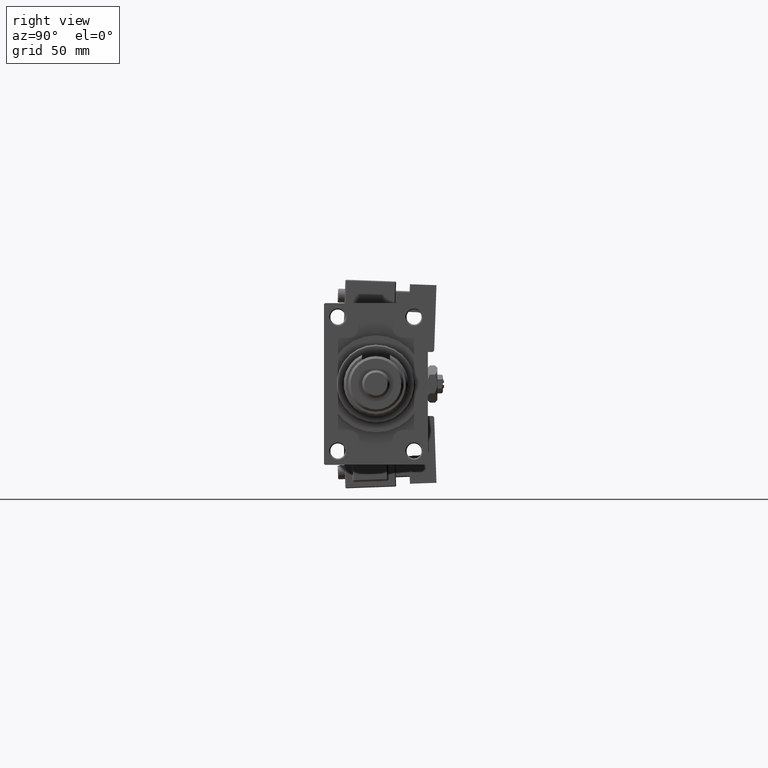
[diagram: clean part render]
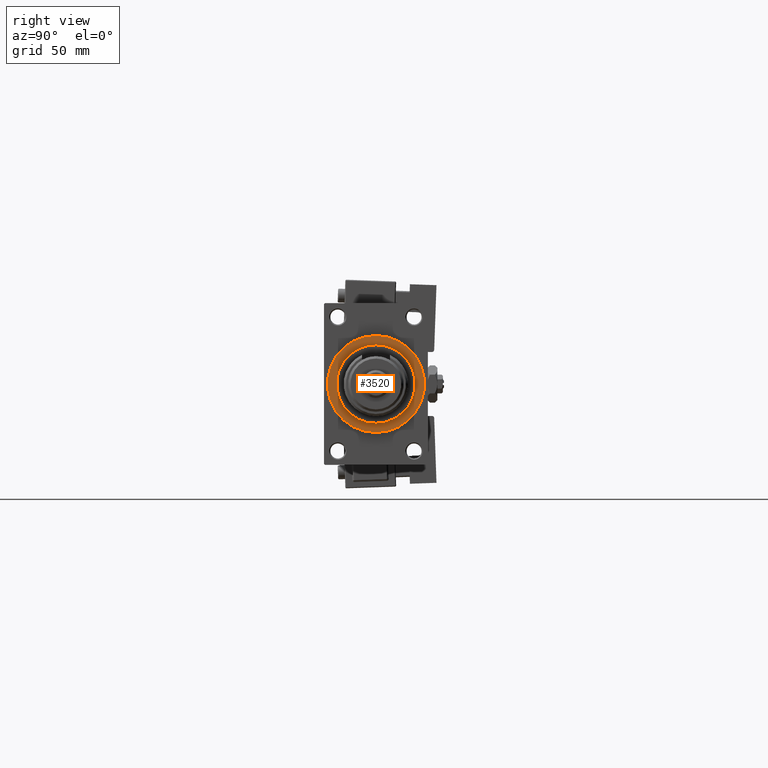
[diagram: same view with one face highlighted and labeled with its STEP entity id]
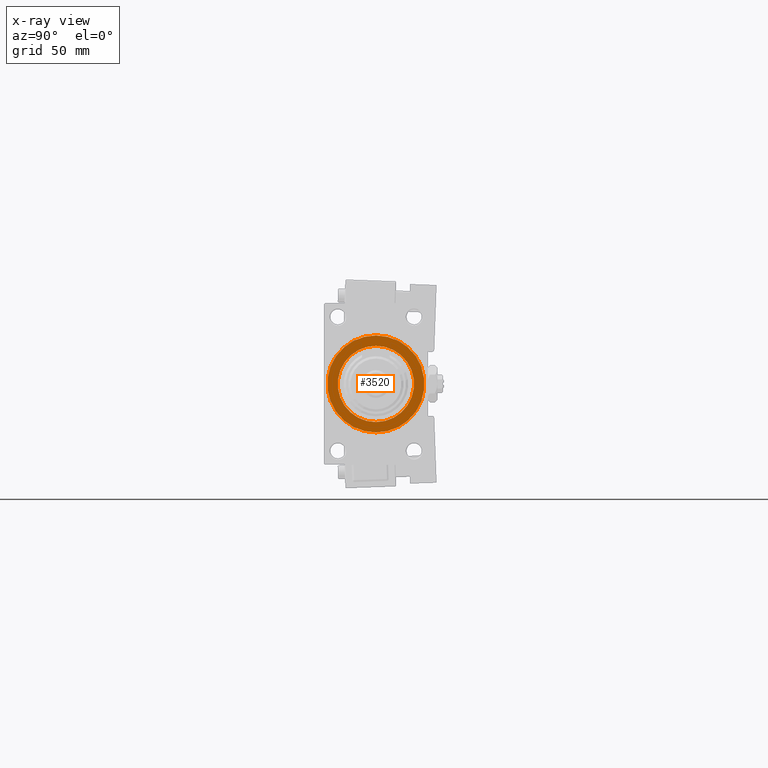
[diagram: x-ray of the same camera — body ghosted, the highlighted face saturated]
A machine part, right view. The second image highlights one B-rep face of the part: STEP entity #3520.
The next image is the same camera in x-ray: the body ghosted, the highlighted face saturated — about 0% of this face is hidden behind the body in this view.
In plain terms, the highlighted planar face has unit normal (1, 0, 0).
Its self-contained STEP definition (entity closure, byte-faithful):
#163 = EDGE_CURVE ( 'NONE', #16197, #31907, #22841, .T. ) ;
#1149 = CARTESIAN_POINT ( 'NONE',  ( 203.0000000000000000, 0.000000000000000000, 0.000000000000000000 ) ) ;
#1742 = CARTESIAN_POINT ( 'NONE',  ( 203.0000000000000000, 0.000000000000000000, 0.000000000000000000 ) ) ;
#3520 = ADVANCED_FACE ( 'NONE', ( #51567, #39518 ), #43629, .T. ) ;
#5876 = DIRECTION ( 'NONE',  ( 1.000000000000000000, 0.000000000000000000, 0.000000000000000000 ) ) ;
#10250 = DIRECTION ( 'NONE',  ( 0.000000000000000000, 0.000000000000000000, -1.000000000000000000 ) ) ;
#10950 = CIRCLE ( 'NONE', #16192, 21.00000000000000000 ) ;
#11151 = VERTEX_POINT ( 'NONE', #37629 ) ;
#15868 = EDGE_LOOP ( 'NONE', ( #32805, #26600 ) ) ;
#16192 = AXIS2_PLACEMENT_3D ( 'NONE', #1742, #39850, #34908 ) ;
#16197 = VERTEX_POINT ( 'NONE', #43842 ) ;
#16858 = EDGE_CURVE ( 'NONE', #11151, #39234, #45370, .T. ) ;
#19361 = AXIS2_PLACEMENT_3D ( 'NONE', #33104, #36961, #53685 ) ;
#19492 = EDGE_CURVE ( 'NONE', #31907, #16197, #26219, .T. ) ;
#21785 = CARTESIAN_POINT ( 'NONE',  ( 203.0000000000000000, 0.000000000000000000, 0.000000000000000000 ) ) ;
#22781 = DIRECTION ( 'NONE',  ( 1.000000000000000000, 0.000000000000000000, 0.000000000000000000 ) ) ;
#22841 = CIRCLE ( 'NONE', #19361, 16.50000000000000000 ) ;
#26219 = CIRCLE ( 'NONE', #35864, 16.50000000000000000 ) ;
#26600 = ORIENTED_EDGE ( 'NONE', *, *, #16858, .T. ) ;
#29079 = ORIENTED_EDGE ( 'NONE', *, *, #163, .F. ) ;
#30677 = CARTESIAN_POINT ( 'NONE',  ( 203.0000000000000000, 0.000000000000000000, 21.00000000000000000 ) ) ;
#31907 = VERTEX_POINT ( 'NONE', #37615 ) ;
#32805 = ORIENTED_EDGE ( 'NONE', *, *, #44931, .T. ) ;
#33104 = CARTESIAN_POINT ( 'NONE',  ( 203.0000000000000000, 0.000000000000000000, 0.000000000000000000 ) ) ;
#33351 = AXIS2_PLACEMENT_3D ( 'NONE', #1149, #22781, #43085 ) ;
#34908 = DIRECTION ( 'NONE',  ( 0.000000000000000000, 0.000000000000000000, -1.000000000000000000 ) ) ;
#35864 = AXIS2_PLACEMENT_3D ( 'NONE', #50836, #38777, #42613 ) ;
#36961 = DIRECTION ( 'NONE',  ( 1.000000000000000000, 0.000000000000000000, 0.000000000000000000 ) ) ;
#37615 = CARTESIAN_POINT ( 'NONE',  ( 203.0000000000000000, 2.020667218593133100E-15, 16.50000000000000000 ) ) ;
#37629 = CARTESIAN_POINT ( 'NONE',  ( 203.0000000000000000, 2.571758278209441661E-15, -21.00000000000000000 ) ) ;
#38777 = DIRECTION ( 'NONE',  ( 1.000000000000000000, 0.000000000000000000, 0.000000000000000000 ) ) ;
#39234 = VERTEX_POINT ( 'NONE', #30677 ) ;
#39518 = FACE_OUTER_BOUND ( 'NONE', #15868, .T. ) ;
#39850 = DIRECTION ( 'NONE',  ( 1.000000000000000000, 0.000000000000000000, 0.000000000000000000 ) ) ;
#42453 = ORIENTED_EDGE ( 'NONE', *, *, #19492, .F. ) ;
#42613 = DIRECTION ( 'NONE',  ( 0.000000000000000000, 0.000000000000000000, -1.000000000000000000 ) ) ;
#43085 = DIRECTION ( 'NONE',  ( 0.000000000000000000, 0.000000000000000000, -1.000000000000000000 ) ) ;
#43187 = EDGE_LOOP ( 'NONE', ( #29079, #42453 ) ) ;
#43629 = PLANE ( 'NONE',  #33351 ) ;
#43842 = CARTESIAN_POINT ( 'NONE',  ( 203.0000000000000000, 0.000000000000000000, -16.50000000000000000 ) ) ;
#44931 = EDGE_CURVE ( 'NONE', #39234, #11151, #10950, .T. ) ;
#45370 = CIRCLE ( 'NONE', #46223, 21.00000000000000000 ) ;
#46223 = AXIS2_PLACEMENT_3D ( 'NONE', #21785, #5876, #10250 ) ;
#50836 = CARTESIAN_POINT ( 'NONE',  ( 203.0000000000000000, 0.000000000000000000, 0.000000000000000000 ) ) ;
#51567 = FACE_BOUND ( 'NONE', #43187, .T. ) ;
#53685 = DIRECTION ( 'NONE',  ( 0.000000000000000000, 0.000000000000000000, -1.000000000000000000 ) ) ;